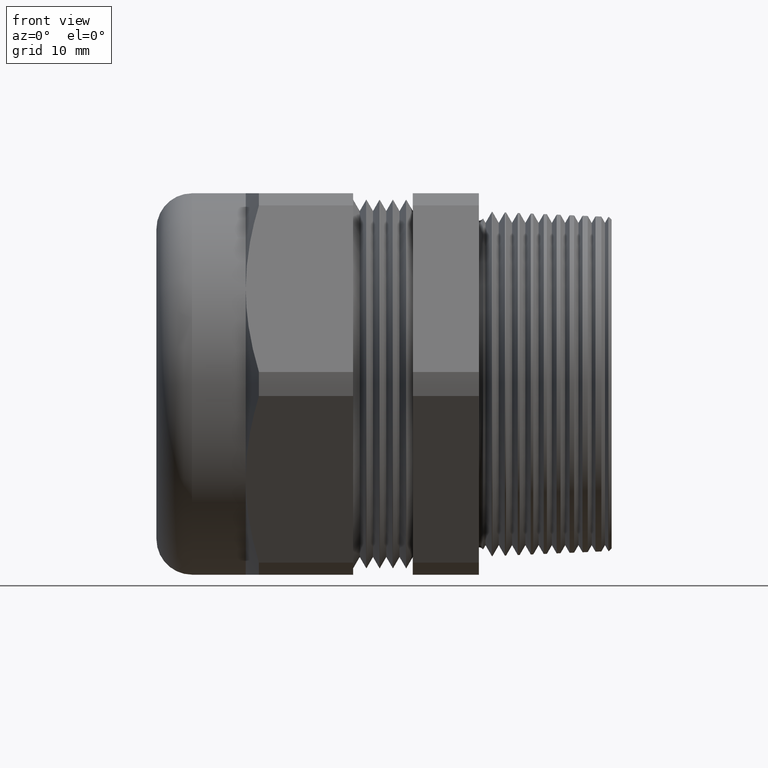
[diagram: clean part render]
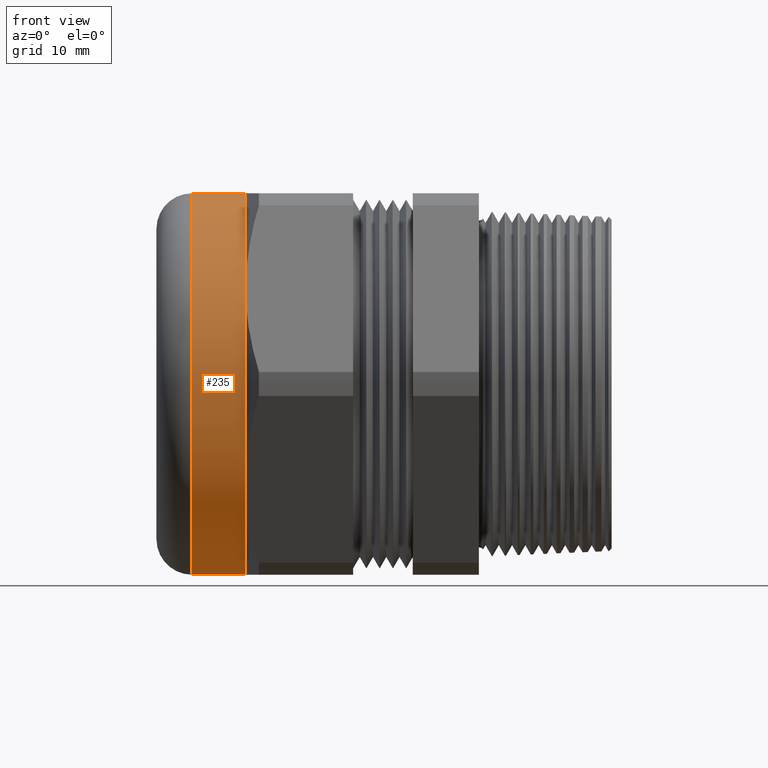
[diagram: same view with one face highlighted and labeled with its STEP entity id]
A machine part, front view. The second image highlights one B-rep face of the part: STEP entity #235.
In plain terms, the highlighted cylindrical surface (partial cylindrical patch) has radius 22.987 mm, axis along (-1, 0, 0).
Its self-contained STEP definition (entity closure, byte-faithful):
#111 = VERTEX_POINT ( 'NONE', #987 ) ;
#163 = ORIENTED_EDGE ( 'NONE', *, *, #215, .T. ) ;
#215 = EDGE_CURVE ( 'NONE', #527, #111, #1100, .T. ) ;
#216 = ORIENTED_EDGE ( 'NONE', *, *, #217, .T. ) ;
#217 = EDGE_CURVE ( 'NONE', #111, #3671, #1163, .T. ) ;
#218 = ORIENTED_EDGE ( 'NONE', *, *, #219, .T. ) ;
#219 = EDGE_CURVE ( 'NONE', #3671, #3782, #1158, .T. ) ;
#220 = ORIENTED_EDGE ( 'NONE', *, *, #3786, .T. ) ;
#221 = ORIENTED_EDGE ( 'NONE', *, *, #222, .T. ) ;
#222 = EDGE_CURVE ( 'NONE', #557, #555, #1153, .T. ) ;
#235 = ADVANCED_FACE ( 'NONE', ( #1135 ), #1133, .T. ) ;
#236 = EDGE_LOOP ( 'NONE', ( #237, #163, #216, #218, #220, #221 ) ) ;
#237 = ORIENTED_EDGE ( 'NONE', *, *, #531, .F. ) ;
#527 = VERTEX_POINT ( 'NONE', #1721 ) ;
#531 = EDGE_CURVE ( 'NONE', #527, #555, #1715, .T. ) ;
#555 = VERTEX_POINT ( 'NONE', #1782 ) ;
#557 = VERTEX_POINT ( 'NONE', #1776 ) ;
#987 = CARTESIAN_POINT ( 'NONE',  ( -1.106250000000000200, -0.7837529904249167500, -0.4525000000000003500 ) ) ;
#1100 = CIRCLE ( 'NONE', #1166, 0.9049999999999999200 ) ;
#1105 = CARTESIAN_POINT ( 'NONE',  ( -1.106250000000000200, 0.0000000000000000000, 0.0000000000000000000 ) ) ;
#1133 = CYLINDRICAL_SURFACE ( 'NONE', #1134, 0.9049999999999999200 ) ;
#1134 = AXIS2_PLACEMENT_3D ( 'NONE', #1201, #1200, #1199 ) ;
#1135 = FACE_OUTER_BOUND ( 'NONE', #236, .T. ) ;
#1149 = DIRECTION ( 'NONE',  ( 0.0000000000000000000, 0.0000000000000000000, -1.000000000000000000 ) ) ;
#1150 = DIRECTION ( 'NONE',  ( 1.000000000000000000, 0.0000000000000000000, 0.0000000000000000000 ) ) ;
#1151 = CARTESIAN_POINT ( 'NONE',  ( -1.361399999999999900, 0.0000000000000000000, 0.0000000000000000000 ) ) ;
#1152 = AXIS2_PLACEMENT_3D ( 'NONE', #1151, #1150, #1149 ) ;
#1153 = CIRCLE ( 'NONE', #1152, 0.9049999999999999200 ) ;
#1154 = DIRECTION ( 'NONE',  ( 0.0000000000000000000, 0.0000000000000000000, 1.000000000000000000 ) ) ;
#1155 = DIRECTION ( 'NONE',  ( -1.000000000000000000, 0.0000000000000000000, 0.0000000000000000000 ) ) ;
#1156 = CARTESIAN_POINT ( 'NONE',  ( -1.106250000000000200, 0.0000000000000000000, 0.0000000000000000000 ) ) ;
#1157 = AXIS2_PLACEMENT_3D ( 'NONE', #1156, #1155, #1154 ) ;
#1158 = CIRCLE ( 'NONE', #1157, 0.9049999999999999200 ) ;
#1159 = DIRECTION ( 'NONE',  ( 0.0000000000000000000, 0.0000000000000000000, 1.000000000000000000 ) ) ;
#1160 = DIRECTION ( 'NONE',  ( -1.000000000000000000, 0.0000000000000000000, 0.0000000000000000000 ) ) ;
#1161 = CARTESIAN_POINT ( 'NONE',  ( -1.106250000000000200, 0.0000000000000000000, 0.0000000000000000000 ) ) ;
#1162 = AXIS2_PLACEMENT_3D ( 'NONE', #1161, #1160, #1159 ) ;
#1163 = CIRCLE ( 'NONE', #1162, 0.9049999999999999200 ) ;
#1164 = DIRECTION ( 'NONE',  ( 0.0000000000000000000, 0.0000000000000000000, 1.000000000000000000 ) ) ;
#1165 = DIRECTION ( 'NONE',  ( -1.000000000000000000, 0.0000000000000000000, 0.0000000000000000000 ) ) ;
#1166 = AXIS2_PLACEMENT_3D ( 'NONE', #1105, #1165, #1164 ) ;
#1199 = DIRECTION ( 'NONE',  ( 0.0000000000000000000, 0.0000000000000000000, 1.000000000000000000 ) ) ;
#1200 = DIRECTION ( 'NONE',  ( -1.000000000000000000, 0.0000000000000000000, 0.0000000000000000000 ) ) ;
#1201 = CARTESIAN_POINT ( 'NONE',  ( -0.7238591030180623300, 0.0000000000000000000, 0.0000000000000000000 ) ) ;
#1711 = DIRECTION ( 'NONE',  ( -1.000000000000000000, 0.0000000000000000000, 0.0000000000000000000 ) ) ;
#1712 = VECTOR ( 'NONE', #1711, 39.37007874015748100 ) ;
#1714 = CARTESIAN_POINT ( 'NONE',  ( -0.7238591030180623300, 1.108305353228354500E-016, -0.9049999999999999200 ) ) ;
#1715 = LINE ( 'NONE', #1714, #1712 ) ;
#1721 = CARTESIAN_POINT ( 'NONE',  ( -1.106250000000000200, 0.0000000000000000000, -0.9050000000000000300 ) ) ;
#1776 = CARTESIAN_POINT ( 'NONE',  ( -1.361399999999999900, 0.0000000000000000000, 0.9049999999999999200 ) ) ;
#1782 = CARTESIAN_POINT ( 'NONE',  ( -1.361399999999999900, 1.108305353228354500E-016, -0.9049999999999999200 ) ) ;
#2619 = CARTESIAN_POINT ( 'NONE',  ( -1.106250000000000200, -0.7837529904249169700, 0.4525000000000000100 ) ) ;
#2830 = DIRECTION ( 'NONE',  ( -1.000000000000000000, 0.0000000000000000000, 0.0000000000000000000 ) ) ;
#2831 = VECTOR ( 'NONE', #2830, 39.37007874015748100 ) ;
#2832 = CARTESIAN_POINT ( 'NONE',  ( -0.7238591030180623300, 0.0000000000000000000, 0.9049999999999999200 ) ) ;
#2837 = LINE ( 'NONE', #2832, #2831 ) ;
#2844 = CARTESIAN_POINT ( 'NONE',  ( -1.106250000000000200, 0.0000000000000000000, 0.9050000000000000300 ) ) ;
#3671 = VERTEX_POINT ( 'NONE', #2619 ) ;
#3782 = VERTEX_POINT ( 'NONE', #2844 ) ;
#3786 = EDGE_CURVE ( 'NONE', #3782, #557, #2837, .T. ) ;